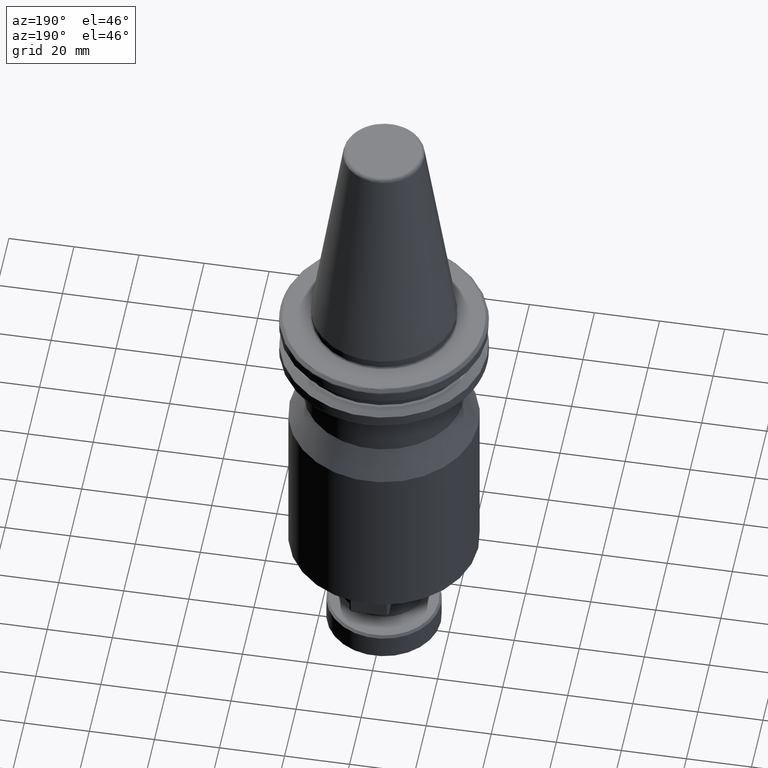
[diagram: clean part render]
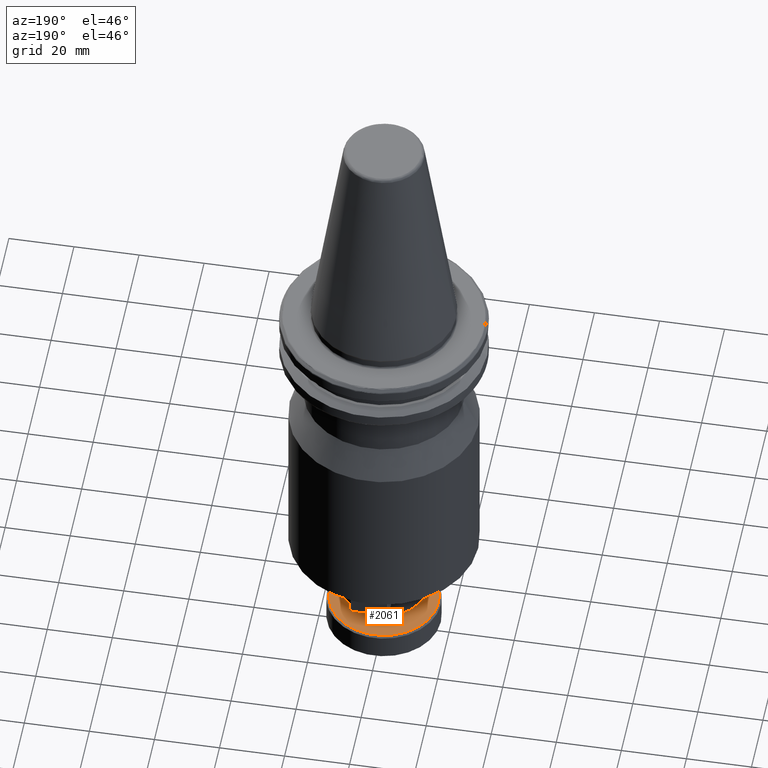
[diagram: same view with one face highlighted and labeled with its STEP entity id]
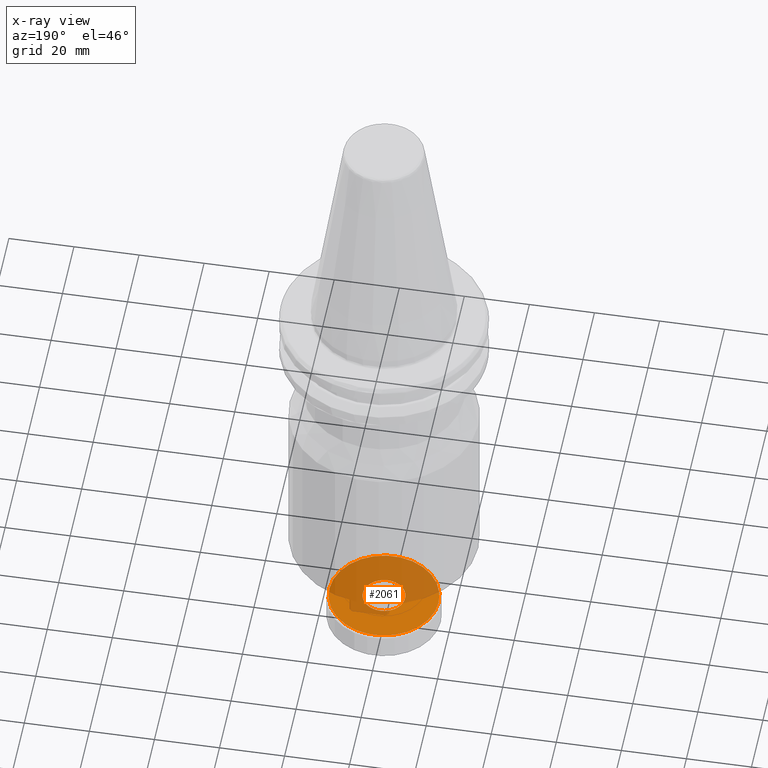
[diagram: x-ray of the same camera — body ghosted, the highlighted face saturated]
A machine part, auxiliary view. The second image highlights one B-rep face of the part: STEP entity #2061.
The next image is the same camera in x-ray: the body ghosted, the highlighted face saturated — about 58% of this face is hidden behind the body in this view.
In plain terms, the highlighted planar face has unit normal (0, 0, 1).
Its self-contained STEP definition (entity closure, byte-faithful):
#44 = EDGE_LOOP ( 'NONE', ( #3637, #3835 ) ) ;
#51 = ORIENTED_EDGE ( 'NONE', *, *, #1170, .T. ) ;
#190 = DIRECTION ( 'NONE',  ( -1.000000000000000000, 0.0000000000000000000, 0.0000000000000000000 ) ) ;
#248 = CARTESIAN_POINT ( 'NONE',  ( 6.081831307204514500, -2.294359589406452100, -125.0000000000000300 ) ) ;
#261 = CARTESIAN_POINT ( 'NONE',  ( 3.650369909008039500, -5.378469706045569500, -125.0000000000000300 ) ) ;
#274 = CARTESIAN_POINT ( 'NONE',  ( 1.286258704652928100, -6.371517007518435500, -125.0000000000000600 ) ) ;
#293 = CARTESIAN_POINT ( 'NONE',  ( -1.696443500554548600, -6.280960208867663000, -125.0000000000000300 ) ) ;
#311 = CARTESIAN_POINT ( 'NONE',  ( -4.979169094834627000, -4.188883282679579900, -125.0000000000000300 ) ) ;
#323 = CARTESIAN_POINT ( 'NONE',  ( -6.222813428592719000, -1.898674653067061700, -125.0000000000000300 ) ) ;
#489 = DIRECTION ( 'NONE',  ( -1.000000000000000000, 0.0000000000000000000, 0.0000000000000000000 ) ) ;
#493 = DIRECTION ( 'NONE',  ( -0.0000000000000000000, -0.0000000000000000000, 1.000000000000000000 ) ) ;
#497 = CARTESIAN_POINT ( 'NONE',  ( 0.0000000000000000000, 0.0000000000000000000, -125.0000000000000300 ) ) ;
#578 = CARTESIAN_POINT ( 'NONE',  ( 5.962850758745861200, -2.596691918991408600, -125.0000000000000300 ) ) ;
#601 = CARTESIAN_POINT ( 'NONE',  ( 3.373169461398392200, -5.560587479962817900, -125.0000000000000000 ) ) ;
#616 = CARTESIAN_POINT ( 'NONE',  ( 1.207171187842162700, -6.386965461205832600, -125.0000000000000600 ) ) ;
#627 = CARTESIAN_POINT ( 'NONE',  ( -2.195590508351295900, -6.118194869740462700, -125.0000000000000300 ) ) ;
#639 = CARTESIAN_POINT ( 'NONE',  ( -5.314797533458448500, -3.742497296623174700, -125.0000000000000600 ) ) ;
#660 = CARTESIAN_POINT ( 'NONE',  ( -6.355738418354500900, -1.363644596093859500, -125.0000000000000000 ) ) ;
#802 = CARTESIAN_POINT ( 'NONE',  ( 6.500000000000001800, 0.0000000000000000000, -125.0000000000000300 ) ) ;
#871 = FACE_OUTER_BOUND ( 'NONE', #931, .T. ) ;
#917 = CARTESIAN_POINT ( 'NONE',  ( 6.446872813033997400, -0.8398493800657272900, -125.0000000000000300 ) ) ;
#931 = EDGE_LOOP ( 'NONE', ( #3051, #51 ) ) ;
#941 = CARTESIAN_POINT ( 'NONE',  ( 5.668681313317637000, -3.182578939928542900, -125.0000000000000000 ) ) ;
#954 = CARTESIAN_POINT ( 'NONE',  ( 2.745768795188397300, -5.893417657134921900, -125.0000000000000300 ) ) ;
#964 = CARTESIAN_POINT ( 'NONE',  ( 0.3972188762374884700, -6.499967590116768600, -124.9999999999999900 ) ) ;
#978 = CARTESIAN_POINT ( 'NONE',  ( -2.341596535442369600, -6.063817256445782200, -125.0000000000000300 ) ) ;
#987 = EDGE_CURVE ( 'NONE', #2325, #2865, #4103, .T. ) ;
#989 = DIRECTION ( 'NONE',  ( 1.000000000000000000, 0.0000000000000000000, -0.0000000000000000000 ) ) ;
#992 = CARTESIAN_POINT ( 'NONE',  ( -5.410441658660893400, -3.602786880904592400, -125.0000000000000300 ) ) ;
#1005 = CARTESIAN_POINT ( 'NONE',  ( -6.381730286476489800, -1.234577345963053800, -125.0000000000000300 ) ) ;
#1008 = DIRECTION ( 'NONE',  ( 0.0000000000000000000, 0.0000000000000000000, 1.000000000000000000 ) ) ;
#1017 = CARTESIAN_POINT ( 'NONE',  ( 0.0000000000000000000, -6.500000000000001800, -125.0000000000000300 ) ) ;
#1018 = CARTESIAN_POINT ( 'NONE',  ( 6.500000000000001800, 0.3977496353280236000, -125.0000000000000300 ) ) ;
#1025 = CARTESIAN_POINT ( 'NONE',  ( 5.970663587378644400, 2.570323946376531100, -125.0000000000000000 ) ) ;
#1033 = CARTESIAN_POINT ( 'NONE',  ( 5.726069114490446300, 3.089868036592087600, -125.0000000000000300 ) ) ;
#1037 = PLANE ( 'NONE',  #1959 ) ;
#1040 = CARTESIAN_POINT ( 'NONE',  ( -5.501801824372175400, 3.463036559797652900, -125.0000000000000000 ) ) ;
#1054 = CARTESIAN_POINT ( 'NONE',  ( 5.893417657133698900, 2.745768795191300300, -125.0000000000000000 ) ) ;
#1057 = CARTESIAN_POINT ( 'NONE',  ( 6.500000000000001800, 0.0000000000000000000, -125.0000000000000300 ) ) ;
#1063 = CARTESIAN_POINT ( 'NONE',  ( 6.381730286476608800, 1.234577345962745400, -125.0000000000000300 ) ) ;
#1068 = CARTESIAN_POINT ( 'NONE',  ( 6.371517007518652200, 1.286258704652445900, -125.0000000000000300 ) ) ;
#1077 = AXIS2_PLACEMENT_3D ( 'NONE', #497, #493, #489 ) ;
#1080 = CIRCLE ( 'NONE', #3069, 16.80000000000000100 ) ;
#1098 = CARTESIAN_POINT ( 'NONE',  ( 4.979169094830910900, 4.188883282683932000, -125.0000000000000300 ) ) ;
#1105 = CARTESIAN_POINT ( 'NONE',  ( -5.558279628903053800, 3.371602732718795200, -125.0000000000000000 ) ) ;
#1115 = CARTESIAN_POINT ( 'NONE',  ( -1.207171187842061000, 6.386965461205894800, -125.0000000000000900 ) ) ;
#1146 = CARTESIAN_POINT ( 'NONE',  ( -2.570323946375042500, 5.970663587379153400, -125.0000000000000300 ) ) ;
#1161 = CARTESIAN_POINT ( 'NONE',  ( -2.196781904921878000, 6.121170730884460700, -125.0000000000000600 ) ) ;
#1170 = EDGE_CURVE ( 'NONE', #2358, #3477, #1834, .T. ) ;
#1189 = CARTESIAN_POINT ( 'NONE',  ( -4.437682957744534900, 4.754731462838852200, -125.0000000000000300 ) ) ;
#1206 = CARTESIAN_POINT ( 'NONE',  ( -3.089868036588684600, 5.726069114491601800, -124.9999999999999700 ) ) ;
#1227 = CARTESIAN_POINT ( 'NONE',  ( 6.500000000000001800, 0.0000000000000000000, -125.0000000000000300 ) ) ;
#1239 = CARTESIAN_POINT ( 'NONE',  ( -6.446872813033996500, 0.8398493800655668600, -125.0000000000000000 ) ) ;
#1250 = CARTESIAN_POINT ( 'NONE',  ( 6.408864267039700000, -1.084920380238457300, -125.0000000000000000 ) ) ;
#1261 = CARTESIAN_POINT ( 'NONE',  ( 6.002391484395757500, 2.494405748002832100, -125.0000000000000300 ) ) ;
#1265 = CARTESIAN_POINT ( 'NONE',  ( 5.501801824372740200, -3.463036559797085800, -125.0000000000000000 ) ) ;
#1277 = CARTESIAN_POINT ( 'NONE',  ( 2.494405748001813800, -6.002391484396188300, -125.0000000000000600 ) ) ;
#1292 = CARTESIAN_POINT ( 'NONE',  ( -6.500000000000000900, 0.1986970474157477900, -125.0000000000000000 ) ) ;
#1294 = CARTESIAN_POINT ( 'NONE',  ( -0.4954114967926693800, -6.486463970486299900, -125.0000000000000000 ) ) ;
#1308 = CARTESIAN_POINT ( 'NONE',  ( -2.895280122227239500, -5.826876718377837600, -125.0000000000000600 ) ) ;
#1316 = CARTESIAN_POINT ( 'NONE',  ( 2.895280122223531800, 5.826876718379407900, -125.0000000000000300 ) ) ;
#1318 = CARTESIAN_POINT ( 'NONE',  ( 6.023237304260660200, 2.443631938224443800, -124.9999999999999900 ) ) ;
#1319 = CARTESIAN_POINT ( 'NONE',  ( -5.726069114491710200, -3.089868036588847600, -125.0000000000000300 ) ) ;
#1333 = CARTESIAN_POINT ( 'NONE',  ( -6.463828298235912800, -0.7920029155569454600, -125.0000000000000300 ) ) ;
#1356 = CARTESIAN_POINT ( 'NONE',  ( 1.696443500554061000, 6.280960208867762500, -125.0000000000000300 ) ) ;
#1364 = CARTESIAN_POINT ( 'NONE',  ( 2.046923828460101500, 6.170896425781152500, -124.9999999999999700 ) ) ;
#1376 = CARTESIAN_POINT ( 'NONE',  ( -6.063817256445331900, 2.341596535443208000, -125.0000000000000600 ) ) ;
#1420 = CARTESIAN_POINT ( 'NONE',  ( 1.156870434361729500, 6.396273613894503100, -125.0000000000000900 ) ) ;
#1473 = CARTESIAN_POINT ( 'NONE',  ( 0.8397343928597659200, 6.446894082020510700, -125.0000000000000300 ) ) ;
#1521 = CARTESIAN_POINT ( 'NONE',  ( 0.4954114967880234300, 6.486463970487149800, -125.0000000000000000 ) ) ;
#1524 = CARTESIAN_POINT ( 'NONE',  ( 6.386963431987221700, 1.207182148499228000, -125.0000000000000000 ) ) ;
#1544 = CARTESIAN_POINT ( 'NONE',  ( -1.363644596092957100, 6.355738418354931700, -125.0000000000000000 ) ) ;
#1550 = CARTESIAN_POINT ( 'NONE',  ( -6.280960208867886000, 1.696443500551930100, -125.0000000000000300 ) ) ;
#1560 = CARTESIAN_POINT ( 'NONE',  ( -6.400386524438741500, 1.133858513669250100, -125.0000000000000900 ) ) ;
#1569 = CARTESIAN_POINT ( 'NONE',  ( -3.650369909007909800, 5.378469706045699200, -125.0000000000000600 ) ) ;
#1582 = CARTESIAN_POINT ( 'NONE',  ( 6.396273613894550200, -1.156870434361593900, -125.0000000000000900 ) ) ;
#1584 = CARTESIAN_POINT ( 'NONE',  ( -6.396273613894492400, 1.156870434361883000, -125.0000000000000300 ) ) ;
#1596 = CARTESIAN_POINT ( 'NONE',  ( -2.494405748001936800, 6.002391484396067500, -125.0000000000000600 ) ) ;
#1599 = CARTESIAN_POINT ( 'NONE',  ( 4.913216317648056600, -4.279119307460535800, -125.0000000000000300 ) ) ;
#1605 = CARTESIAN_POINT ( 'NONE',  ( -3.879309253657345500, 5.217618218865895100, -125.0000000000000000 ) ) ;
#1616 = CARTESIAN_POINT ( 'NONE',  ( 2.417094825555842000, -6.033930610158534200, -125.0000000000000600 ) ) ;
#1625 = CARTESIAN_POINT ( 'NONE',  ( -1.011409297802958100, -6.421169400719515300, -125.0000000000000300 ) ) ;
#1630 = CARTESIAN_POINT ( 'NONE',  ( 5.560587479961886200, 3.373169461400610500, -125.0000000000000300 ) ) ;
#1632 = CARTESIAN_POINT ( 'NONE',  ( -1.543258649961972500, 6.315711015218322900, -124.9999999999999700 ) ) ;
#1637 = CARTESIAN_POINT ( 'NONE',  ( -3.371602732721739000, -5.558279628901466700, -125.0000000000000300 ) ) ;
#1653 = CARTESIAN_POINT ( 'NONE',  ( -5.970663587379196900, -2.570323946375113100, -125.0000000000000300 ) ) ;
#1657 = CARTESIAN_POINT ( 'NONE',  ( -6.118194869740573700, 2.195590508350031600, -125.0000000000000900 ) ) ;
#1666 = CARTESIAN_POINT ( 'NONE',  ( -5.195146817117472600, 3.932170745826527800, -125.0000000000000300 ) ) ;
#1669 = CARTESIAN_POINT ( 'NONE',  ( -6.500000000000001800, 8.245569468628293400E-016, -125.0000000000000300 ) ) ;
#1681 = CARTESIAN_POINT ( 'NONE',  ( -3.373169461398664000, 5.560587479962547900, -125.0000000000000600 ) ) ;
#1684 = CARTESIAN_POINT ( 'NONE',  ( -3.602786880904616000, 5.410441658660906800, -125.0000000000000600 ) ) ;
#1689 = CARTESIAN_POINT ( 'NONE',  ( -6.421156993811088400, 1.011476373670975100, -125.0000000000000000 ) ) ;
#1714 = CARTESIAN_POINT ( 'NONE',  ( -1.234577345962766900, 6.381730286476628300, -125.0000000000000600 ) ) ;
#1751 = CARTESIAN_POINT ( 'NONE',  ( 6.463828298235912800, 0.7920029155543394400, -125.0000000000000300 ) ) ;
#1786 = CARTESIAN_POINT ( 'NONE',  ( -1.898674653065001800, 6.222813428593697800, -125.0000000000000000 ) ) ;
#1798 = CARTESIAN_POINT ( 'NONE',  ( -6.081831307204727600, 2.294359589405366300, -125.0000000000000600 ) ) ;
#1807 = CARTESIAN_POINT ( 'NONE',  ( 6.315711015218234100, 1.543258649961858800, -125.0000000000000600 ) ) ;
#1814 = CARTESIAN_POINT ( 'NONE',  ( 6.033930610158473800, 2.417094825555972100, -125.0000000000000300 ) ) ;
#1819 = CARTESIAN_POINT ( 'NONE',  ( 2.596691918989286800, 5.962850758746758300, -125.0000000000000300 ) ) ;
#1834 = CIRCLE ( 'NONE', #1077, 16.80000000000000100 ) ;
#1837 = CARTESIAN_POINT ( 'NONE',  ( 5.217618218863092800, 3.879309253660390600, -125.0000000000000600 ) ) ;
#1871 = CARTESIAN_POINT ( 'NONE',  ( -6.408864267039700900, 1.084920380238402200, -125.0000000000000600 ) ) ;
#1889 = CARTESIAN_POINT ( 'NONE',  ( 6.500000000000001800, -0.1986970474158695200, -124.9999999999999700 ) ) ;
#1901 = CARTESIAN_POINT ( 'NONE',  ( -0.7921782860690136400, 6.463795830737177000, -125.0000000000000300 ) ) ;
#1906 = CARTESIAN_POINT ( 'NONE',  ( -5.668681313320136400, 3.182578939923916800, -125.0000000000000600 ) ) ;
#1910 = CARTESIAN_POINT ( 'NONE',  ( 6.280960208867092800, -1.696443500555980800, -125.0000000000000000 ) ) ;
#1920 = CARTESIAN_POINT ( 'NONE',  ( 4.188883282680357900, -4.979169094834166900, -125.0000000000000000 ) ) ;
#1923 = CARTESIAN_POINT ( 'NONE',  ( 1.133837295791987300, 6.400390449073160700, -125.0000000000000600 ) ) ;
#1934 = CARTESIAN_POINT ( 'NONE',  ( 1.898674653066680500, -6.222813428592761700, -125.0000000000000000 ) ) ;
#1947 = CARTESIAN_POINT ( 'NONE',  ( -1.133837295792632400, -6.400390449073040800, -125.0000000000000300 ) ) ;
#1959 = AXIS2_PLACEMENT_3D ( 'NONE', #1017, #1008, #989 ) ;
#1965 = CARTESIAN_POINT ( 'NONE',  ( -6.486435611838467200, 0.4955648130624262800, -125.0000000000000000 ) ) ;
#1967 = CARTESIAN_POINT ( 'NONE',  ( -3.932170745829834900, -5.195146817114526500, -125.0000000000000300 ) ) ;
#1983 = CARTESIAN_POINT ( 'NONE',  ( -6.023237304260833400, -2.443631938223996200, -125.0000000000000300 ) ) ;
#1986 = CARTESIAN_POINT ( 'NONE',  ( -5.826876718381016400, 2.895280122221348700, -125.0000000000000300 ) ) ;
#2034 = CARTESIAN_POINT ( 'NONE',  ( 0.1986094381160900500, 6.500016204942107300, -125.0000000000000600 ) ) ;
#2061 = ADVANCED_FACE ( 'NONE', ( #2607, #871 ), #1037, .T. ) ;
#2082 = CARTESIAN_POINT ( 'NONE',  ( -6.500000000000001800, 8.245569468628293400E-016, -125.0000000000000300 ) ) ;
#2130 = CARTESIAN_POINT ( 'NONE',  ( 1.084879997826839500, 6.408871736505200400, -125.0000000000000000 ) ) ;
#2149 = CARTESIAN_POINT ( 'NONE',  ( -2.417094825555960100, 6.033930610158464900, -125.0000000000000300 ) ) ;
#2161 = CARTESIAN_POINT ( 'NONE',  ( -6.353175141213676500, 1.389875091215419000, -125.0000000000000300 ) ) ;
#2166 = CARTESIAN_POINT ( 'NONE',  ( -2.443631938223974000, 6.023237304260821800, -125.0000000000000000 ) ) ;
#2178 = DIRECTION ( 'NONE',  ( -0.0000000000000000000, -0.0000000000000000000, 1.000000000000000000 ) ) ;
#2187 = CARTESIAN_POINT ( 'NONE',  ( -3.742497296623314500, 5.314797533458461000, -125.0000000000000300 ) ) ;
#2207 = CARTESIAN_POINT ( 'NONE',  ( 6.355738418354877500, 1.363644596092891800, -125.0000000000000300 ) ) ;
#2221 = CARTESIAN_POINT ( 'NONE',  ( -4.188883282679870300, 4.979169094834652800, -125.0000000000000000 ) ) ;
#2231 = CARTESIAN_POINT ( 'NONE',  ( -6.170896425781248400, 2.046923828458503200, -125.0000000000000300 ) ) ;
#2237 = CARTESIAN_POINT ( 'NONE',  ( 6.118194869740189100, -2.195590508351986000, -125.0000000000000000 ) ) ;
#2249 = CARTESIAN_POINT ( 'NONE',  ( 3.742497296623549500, -5.314797533458228300, -125.0000000000000300 ) ) ;
#2264 = CARTESIAN_POINT ( 'NONE',  ( 1.363644596093691800, -6.355738418354518700, -125.0000000000000000 ) ) ;
#2274 = CARTESIAN_POINT ( 'NONE',  ( -4.913216317648612600, 4.279119307459979800, -125.0000000000000000 ) ) ;
#2279 = CARTESIAN_POINT ( 'NONE',  ( -1.389875091216914700, -6.353175141213546900, -125.0000000000000300 ) ) ;
#2293 = CARTESIAN_POINT ( 'NONE',  ( -4.754731462838837100, -4.437682957744367100, -125.0000000000000600 ) ) ;
#2305 = CARTESIAN_POINT ( 'NONE',  ( -6.121170730883900300, -2.196781904923054800, -125.0000000000000300 ) ) ;
#2325 = VERTEX_POINT ( 'NONE', #2864 ) ;
#2334 = CARTESIAN_POINT ( 'NONE',  ( -5.962850758747677600, 2.596691918988041100, -125.0000000000000000 ) ) ;
#2358 = VERTEX_POINT ( 'NONE', #3524 ) ;
#2485 = CARTESIAN_POINT ( 'NONE',  ( 3.371602732719886800, 5.558279628902249100, -125.0000000000000300 ) ) ;
#2497 = CARTESIAN_POINT ( 'NONE',  ( 3.182578939925631500, 5.668681313318871600, -125.0000000000000600 ) ) ;
#2558 = CARTESIAN_POINT ( 'NONE',  ( 6.063817256445780400, -2.341596535442367800, -125.0000000000000300 ) ) ;
#2574 = CARTESIAN_POINT ( 'NONE',  ( 3.602786880904683500, -5.410441658660839300, -125.0000000000000300 ) ) ;
#2585 = CARTESIAN_POINT ( 'NONE',  ( 1.234577345962999400, -6.381730286476497800, -125.0000000000000300 ) ) ;
#2595 = CARTESIAN_POINT ( 'NONE',  ( -2.046923828460470100, -6.170896425781077900, -125.0000000000000000 ) ) ;
#2607 = FACE_BOUND ( 'NONE', #44, .T. ) ;
#2609 = EDGE_CURVE ( 'NONE', #3477, #2358, #1080, .T. ) ;
#2612 = CARTESIAN_POINT ( 'NONE',  ( -5.217618218865878200, -3.879309253657126100, -125.0000000000000000 ) ) ;
#2627 = CARTESIAN_POINT ( 'NONE',  ( -6.315711015217585700, -1.543258649963522800, -125.0000000000000000 ) ) ;
#2641 = CARTESIAN_POINT ( 'NONE',  ( 4.754731462836714300, 4.437682957746853100, -125.0000000000000600 ) ) ;
#2691 = CARTESIAN_POINT ( 'NONE',  ( 3.932170745824867800, 5.195146817118772000, -125.0000000000000300 ) ) ;
#2785 = CARTESIAN_POINT ( 'NONE',  ( 5.378469706044699100, 3.650369909008996900, -125.0000000000000300 ) ) ;
#2804 = CARTESIAN_POINT ( 'NONE',  ( 2.341596535442895400, 6.063817256445559200, -125.0000000000000600 ) ) ;
#2854 = CARTESIAN_POINT ( 'NONE',  ( 6.121170730884392300, 2.196781904921790500, -125.0000000000000600 ) ) ;
#2856 = CARTESIAN_POINT ( 'NONE',  ( 6.486435611838467200, -0.4955648130626385500, -125.0000000000000000 ) ) ;
#2864 = CARTESIAN_POINT ( 'NONE',  ( -6.500000000000001800, 8.245569468628293400E-016, -125.0000000000000300 ) ) ;
#2865 = VERTEX_POINT ( 'NONE', #802 ) ;
#2870 = CARTESIAN_POINT ( 'NONE',  ( 5.826876718377834900, -2.895280122227237700, -125.0000000000000000 ) ) ;
#2883 = CARTESIAN_POINT ( 'NONE',  ( 3.089868036588214300, -5.726069114492075200, -125.0000000000000300 ) ) ;
#2896 = CARTESIAN_POINT ( 'NONE',  ( 0.7921782860673946000, -6.463795830738150400, -125.0000000000000300 ) ) ;
#2913 = CARTESIAN_POINT ( 'NONE',  ( -2.294359589406069300, -6.081831307204669900, -125.0000000000000900 ) ) ;
#2925 = CARTESIAN_POINT ( 'NONE',  ( -5.378469706045693900, -3.650369909007829000, -125.0000000000000300 ) ) ;
#2936 = CARTESIAN_POINT ( 'NONE',  ( -6.371517007518424000, -1.286258704653030900, -125.0000000000000000 ) ) ;
#2952 = CARTESIAN_POINT ( 'NONE',  ( 4.279119307464255500, 4.913216317643979800, -125.0000000000000300 ) ) ;
#2993 = B_SPLINE_CURVE_WITH_KNOTS ( 'NONE', 3,
 ( #1227, #1889, #2856, #917, #3166, #1250, #3476, #1582, #3769, #1910, #4070, #2237, #248, #2558, #578, #2870, #941, #3180, #1265, #3496, #1599, #3778, #1920, #4090, #2249, #261, #2574, #601, #2883, #954, #3200, #1277, #3506, #1616, #3790, #1934, #4097, #2264, #274, #2585, #616, #2896, #964, #3215, #1294, #3517, #1625, #3805, #1947, #4108, #2279, #293, #2595, #627, #2913, #978, #3224, #1308, #3532, #1637, #3814, #1967, #4122, #2293, #311, #2612, #639, #2925, #992, #3238, #1319, #3547, #1653, #3823, #1983, #4141, #2305, #323, #2627, #660, #2936, #1005, #3252, #1333, #3557, #1669 ),
 .UNSPECIFIED., .F., .F.,
 ( 4, 1, 1, 1, 2, 2, 1, 1, 2, 2, 1, 2, 2, 2, 1, 1, 2, 2, 1, 1, 1, 2, 2, 1, 1, 1, 2, 2, 2, 1, 1, 1, 2, 2, 1, 1, 2, 2, 1, 2, 2, 2, 1, 1, 2, 2, 1, 1, 1, 2, 2, 1, 1, 1, 2, 2, 4 ),
 ( 0.0000000000000000000, 0.03125000000000010400, 0.04687500000000014600, 0.05468750000000017300, 0.05859375000000016700, 0.06250000000000015300, 0.09374999999999991700, 0.1093749999999997900, 0.1171874999999997500, 0.1249999999999997100, 0.1562499999999995800, 0.1718749999999995000, 0.1874999999999993900, 0.2499999999999992000, 0.2812499999999991700, 0.2968749999999991700, 0.3046874999999991100, 0.3124999999999991100, 0.3437499999999989500, 0.3593749999999988900, 0.3671874999999988300, 0.3710937499999987800, 0.3749999999999987200, 0.4062499999999988900, 0.4218749999999989500, 0.4296874999999990000, 0.4335937499999990000, 0.4374999999999990000, 0.4999999999999990000, 0.5312499999999990000, 0.5468749999999988900, 0.5546874999999990000, 0.5585937499999990000, 0.5624999999999990000, 0.5937499999999991100, 0.6093749999999991100, 0.6171874999999992200, 0.6249999999999992200, 0.6562499999999993300, 0.6718749999999993300, 0.6874999999999994400, 0.7499999999999994400, 0.7812499999999994400, 0.7968749999999995600, 0.8046874999999995600, 0.8124999999999995600, 0.8437499999999997800, 0.8593749999999998900, 0.8671874999999998900, 0.8710937499999998900, 0.8749999999999998900, 0.9062499999999998900, 0.9218750000000000000, 0.9296875000000000000, 0.9335937500000000000, 0.9375000000000000000, 1.000000000000000000 ),
 .UNSPECIFIED. ) ;
#3051 = ORIENTED_EDGE ( 'NONE', *, *, #2609, .T. ) ;
#3063 = CARTESIAN_POINT ( 'NONE',  ( 2.294359589405935700, 6.081831307204691200, -125.0000000000000300 ) ) ;
#3069 = AXIS2_PLACEMENT_3D ( 'NONE', #4021, #2178, #190 ) ;
#3111 = CARTESIAN_POINT ( 'NONE',  ( 5.410441658661072900, 3.602786880904132800, -125.0000000000000600 ) ) ;
#3166 = CARTESIAN_POINT ( 'NONE',  ( 6.421156993811088400, -1.011476373671069900, -125.0000000000000900 ) ) ;
#3180 = CARTESIAN_POINT ( 'NONE',  ( 5.558279628901465800, -3.371602732721738600, -125.0000000000000300 ) ) ;
#3200 = CARTESIAN_POINT ( 'NONE',  ( 2.570323946374837300, -5.970663587379356800, -125.0000000000000600 ) ) ;
#3215 = CARTESIAN_POINT ( 'NONE',  ( -0.1986094381187444900, -6.500016204941620600, -125.0000000000000900 ) ) ;
#3224 = CARTESIAN_POINT ( 'NONE',  ( -2.596691918991409500, -5.962850758745860300, -125.0000000000000300 ) ) ;
#3238 = CARTESIAN_POINT ( 'NONE',  ( -5.560587479962610000, -3.373169461398756000, -125.0000000000000600 ) ) ;
#3252 = CARTESIAN_POINT ( 'NONE',  ( -6.386963431987222600, -1.207182148499066400, -125.0000000000000300 ) ) ;
#3359 = CARTESIAN_POINT ( 'NONE',  ( -0.3972188762321813800, 6.499967590115796100, -125.0000000000000000 ) ) ;
#3399 = CARTESIAN_POINT ( 'NONE',  ( -1.286258704652485400, 6.371517007518682400, -125.0000000000000000 ) ) ;
#3404 = CARTESIAN_POINT ( 'NONE',  ( 3.463036559798068600, 5.501801824371851200, -125.0000000000000600 ) ) ;
#3421 = CARTESIAN_POINT ( 'NONE',  ( -16.80000000000000100, 0.0000000000000000000, -125.0000000000000300 ) ) ;
#3435 = CARTESIAN_POINT ( 'NONE',  ( 1.011409297800924600, 6.421169400719888300, -125.0000000000000300 ) ) ;
#3449 = CARTESIAN_POINT ( 'NONE',  ( -2.745768795188749100, 5.893417657134567600, -125.0000000000000300 ) ) ;
#3476 = CARTESIAN_POINT ( 'NONE',  ( 6.400386524438745000, -1.133858513669278300, -125.0000000000000900 ) ) ;
#3477 = VERTEX_POINT ( 'NONE', #3421 ) ;
#3496 = CARTESIAN_POINT ( 'NONE',  ( 5.195146817115211300, -3.932170745828789100, -125.0000000000000300 ) ) ;
#3506 = CARTESIAN_POINT ( 'NONE',  ( 2.443631938223911800, -6.023237304260889300, -125.0000000000000600 ) ) ;
#3517 = CARTESIAN_POINT ( 'NONE',  ( -0.8397343928632528000, -6.446894082019871200, -125.0000000000000600 ) ) ;
#3524 = CARTESIAN_POINT ( 'NONE',  ( 16.80000000000000100, 2.100269260537711100E-015, -125.0000000000000300 ) ) ;
#3532 = CARTESIAN_POINT ( 'NONE',  ( -3.182578939928541100, -5.668681313317639700, -125.0000000000000000 ) ) ;
#3536 = CARTESIAN_POINT ( 'NONE',  ( 6.222813428593576100, 1.898674653064850200, -125.0000000000000000 ) ) ;
#3544 = CARTESIAN_POINT ( 'NONE',  ( 2.195590508351058300, 6.118194869740508000, -125.0000000000000000 ) ) ;
#3547 = CARTESIAN_POINT ( 'NONE',  ( -5.893417657134644800, -2.745768795188870700, -125.0000000000000000 ) ) ;
#3549 = CARTESIAN_POINT ( 'NONE',  ( 1.389875091216635500, 6.353175141213602800, -125.0000000000000300 ) ) ;
#3557 = CARTESIAN_POINT ( 'NONE',  ( -6.500000000000001800, -0.3977496353306293500, -125.0000000000000300 ) ) ;
#3637 = ORIENTED_EDGE ( 'NONE', *, *, #987, .T. ) ;
#3769 = CARTESIAN_POINT ( 'NONE',  ( 6.353175141213220900, -1.389875091217733300, -125.0000000000000000 ) ) ;
#3778 = CARTESIAN_POINT ( 'NONE',  ( 4.437682957744811100, -4.754731462838576000, -125.0000000000000300 ) ) ;
#3790 = CARTESIAN_POINT ( 'NONE',  ( 2.196781904922836800, -6.121170730883925200, -125.0000000000000600 ) ) ;
#3805 = CARTESIAN_POINT ( 'NONE',  ( -1.084879997828064800, -6.408871736504976500, -125.0000000000000600 ) ) ;
#3814 = CARTESIAN_POINT ( 'NONE',  ( -3.463036559796823800, -5.501801824372915200, -125.0000000000000600 ) ) ;
#3823 = CARTESIAN_POINT ( 'NONE',  ( -6.002391484396092400, -2.494405748001979900, -125.0000000000000000 ) ) ;
#3835 = ORIENTED_EDGE ( 'NONE', *, *, #4129, .T. ) ;
#4021 = CARTESIAN_POINT ( 'NONE',  ( 0.0000000000000000000, 0.0000000000000000000, -125.0000000000000300 ) ) ;
#4070 = CARTESIAN_POINT ( 'NONE',  ( 6.170896425780654200, -2.046923828461543400, -125.0000000000000600 ) ) ;
#4081 = CARTESIAN_POINT ( 'NONE',  ( 5.314797533456658000, 3.742497296625271600, -125.0000000000000000 ) ) ;
#4090 = CARTESIAN_POINT ( 'NONE',  ( 3.879309253657709200, -5.217618218865534500, -125.0000000000000000 ) ) ;
#4097 = CARTESIAN_POINT ( 'NONE',  ( 1.543258649963231300, -6.315711015217619500, -125.0000000000000000 ) ) ;
#4103 = B_SPLINE_CURVE_WITH_KNOTS ( 'NONE', 3,
 ( #2082, #1292, #1965, #1239, #1689, #1871, #1560, #1584, #2161, #1550, #2231, #1657, #1798, #1376, #2334, #1986, #1906, #1105, #1040, #1666, #2274, #1189, #2221, #1605, #2187, #1569, #1684, #1681, #1206, #3449, #1146, #1596, #2166, #2149, #1161, #1786, #1632, #1544, #3399, #1714, #1115, #1901, #3359, #2034, #1521, #1473, #3435, #2130, #1923, #1420, #3549, #1356, #1364, #3544, #3063, #2804, #1819, #1316, #2497, #2485, #3404, #2691, #2952, #2641, #1098, #1837, #4081, #2785, #3111, #1630, #1033, #1054, #1025, #1261, #1318, #1814, #2854, #3536, #1807, #2207, #1068, #1063, #1524, #1751, #1018, #1057 ),
 .UNSPECIFIED., .F., .F.,
 ( 4, 1, 1, 1, 2, 2, 1, 1, 2, 2, 1, 2, 2, 2, 1, 1, 2, 2, 1, 1, 1, 2, 2, 1, 1, 1, 2, 2, 2, 1, 1, 1, 2, 2, 1, 1, 2, 2, 1, 2, 2, 2, 1, 1, 2, 2, 1, 1, 1, 2, 2, 1, 1, 1, 2, 2, 4 ),
 ( 0.0000000000000000000, 0.03125000000000008300, 0.04687500000000011800, 0.05468750000000013900, 0.05859375000000014600, 0.06250000000000015300, 0.09375000000000027800, 0.1093750000000003300, 0.1171875000000003900, 0.1250000000000004400, 0.1562500000000006400, 0.1718750000000007200, 0.1875000000000007800, 0.2500000000000011100, 0.2812500000000012800, 0.2968750000000013900, 0.3046875000000015000, 0.3125000000000015500, 0.3437500000000021100, 0.3593750000000022800, 0.3671875000000023900, 0.3710937500000023900, 0.3750000000000023900, 0.4062500000000027800, 0.4218750000000028900, 0.4296875000000030000, 0.4335937500000030500, 0.4375000000000030500, 0.5000000000000036600, 0.5312500000000040000, 0.5468750000000041100, 0.5546875000000042200, 0.5585937500000042200, 0.5625000000000043300, 0.5937500000000045500, 0.6093750000000047700, 0.6171875000000047700, 0.6250000000000047700, 0.6562500000000051100, 0.6718750000000052200, 0.6875000000000054400, 0.7500000000000057700, 0.7812500000000060000, 0.7968750000000060000, 0.8046875000000058800, 0.8125000000000058800, 0.8437500000000055500, 0.8593750000000054400, 0.8671875000000053300, 0.8710937500000052200, 0.8750000000000051100, 0.9062500000000040000, 0.9218750000000033300, 0.9296875000000030000, 0.9335937500000027800, 0.9375000000000026600, 1.000000000000000000 ),
 .UNSPECIFIED. ) ;
#4108 = CARTESIAN_POINT ( 'NONE',  ( -1.156870434361697100, -6.396273613894509300, -125.0000000000000600 ) ) ;
#4122 = CARTESIAN_POINT ( 'NONE',  ( -4.279119307460013600, -4.913216317648944700, -125.0000000000000300 ) ) ;
#4129 = EDGE_CURVE ( 'NONE', #2865, #2325, #2993, .T. ) ;
#4141 = CARTESIAN_POINT ( 'NONE',  ( -6.033930610158536800, -2.417094825555812700, -125.0000000000000300 ) ) ;